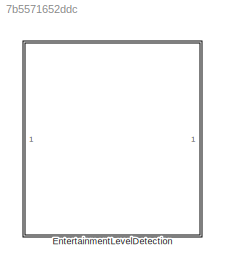
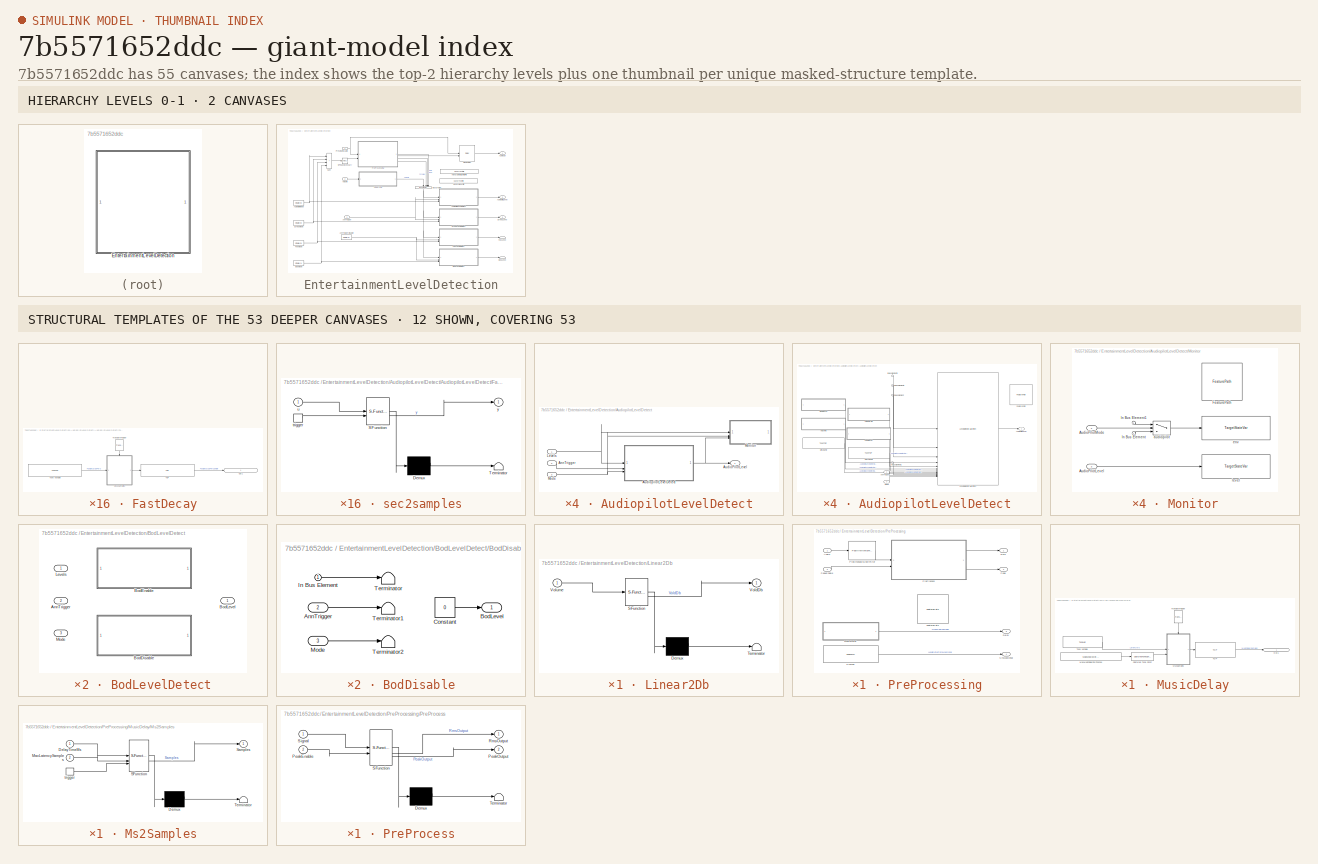
[diagram: thumbnail index - top-2 hierarchy levels (2 canvases) + 12 structural-template representatives of the remaining 53 canvases]
MODEL slx_7b5571652ddc
KIND library
CONFIG AbsTol = auto
CONFIG EnableMultiTasking = off
CONFIG FixedStep = auto
CONFIG InitFcn = EntertainmentLevelDetector_init;
CONFIG MaxStep = auto
CONFIG MinStep = auto
CONFIG PreLoadFcn = if (~exist('AUDIOPILOT_NUM_MUSIC_IN','var'))\n  AUDIOPILOT_NUM_MUSIC_IN=6;\nend\n
CONFIG RelTol = 1e-3
CONFIG SampleTimeConstraint = Unconstrained
CONFIG SolverName = VariableStepAuto
CONFIG StartTime = 0.0
CONFIG StopTime = 10.0
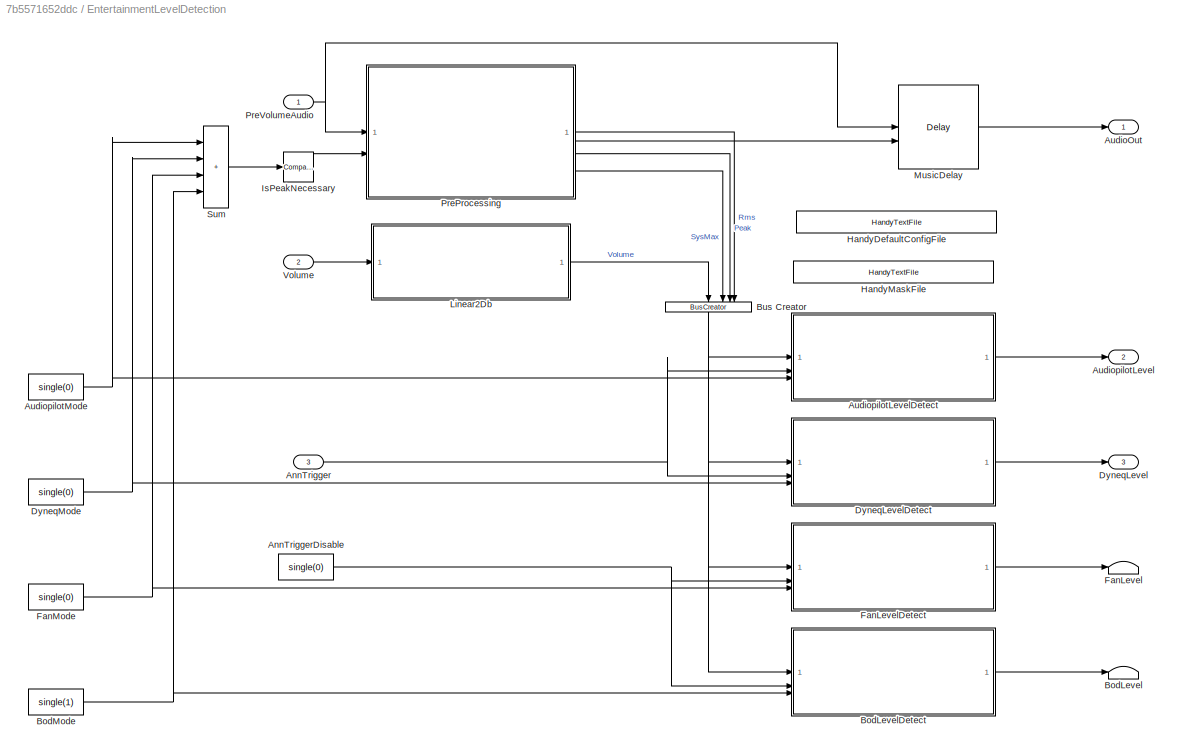
BLOCK [SubSystem] EntertainmentLevelDetection
BLOCK [Inport] EntertainmentLevelDetection/AnnTrigger
  Port = 3
BLOCK [Constant] EntertainmentLevelDetection/AnnTriggerDisable
  Value = single(0)
BLOCK [Outport] EntertainmentLevelDetection/AudioOut
  VectorParamsAs1DForOutWhenUnconnected = off
BLOCK [Outport] EntertainmentLevelDetection/AudiopilotLevel
  Port = 2
  VectorParamsAs1DForOutWhenUnconnected = off
BLOCK [SubSystem] EntertainmentLevelDetection/AudiopilotLevelDetect
BLOCK [Inport] EntertainmentLevelDetection/AudiopilotLevelDetect/AnnTrigger
  Port = 2
BLOCK [Outport] EntertainmentLevelDetection/AudiopilotLevelDetect/AudioPilotLevel
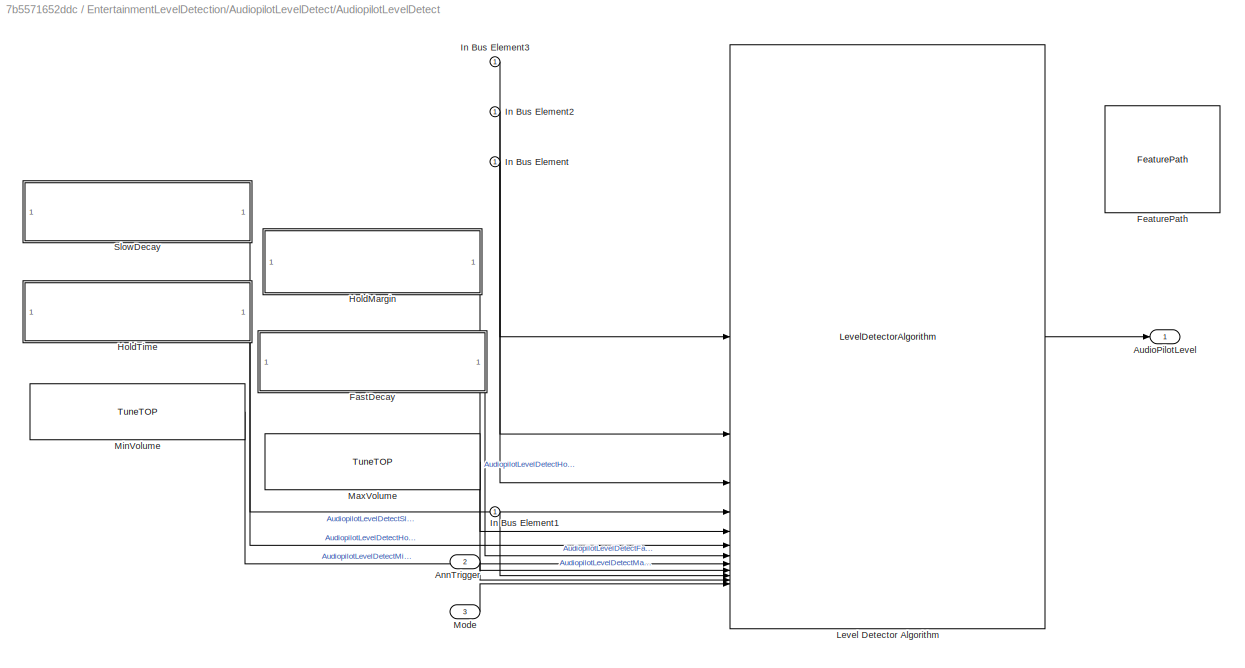
BLOCK [SubSystem] EntertainmentLevelDetection/AudiopilotLevelDetect/AudiopilotLevelDetect
BLOCK [Inport] EntertainmentLevelDetection/AudiopilotLevelDetect/AudiopilotLevelDetect/AnnTrigger
  Port = 2
BLOCK [Outport] EntertainmentLevelDetection/AudiopilotLevelDetect/AudiopilotLevelDetect/AudioPilotLevel
  VectorParamsAs1DForOutWhenUnconnected = off
BLOCK [SubSystem] EntertainmentLevelDetection/AudiopilotLevelDetect/AudiopilotLevelDetect/FastDecay
BLOCK [Outport] EntertainmentLevelDetection/AudiopilotLevelDetect/AudiopilotLevelDetect/FastDecay/Out1
  IconDisplay = Signal name
  VectorParamsAs1DForOutWhenUnconnected = off
BLOCK [Reference] EntertainmentLevelDetection/AudiopilotLevelDetect/AudiopilotLevelDetect/FastDecay/TOP  REF=TOP/TOP
  SourceBlock = TOP/TOP
  SourceProductName = Bose Talaria
  SourceType = Talaria Target Overlay Parameter
BLOCK [Reference] EntertainmentLevelDetection/AudiopilotLevelDetect/AudiopilotLevelDetect/FastDecay/TranslateTrigger  REF=TuneVar/TranslateTrigger
  NameLocation = left
  SourceBlock = TuneVar/TranslateTrigger
  SourceProductName = Bose Talaria
  SourceType = Talaria Translate Trigger
BLOCK [Reference] EntertainmentLevelDetection/AudiopilotLevelDetect/AudiopilotLevelDetect/FastDecay/Tune Variable  REF=TuneVar/TuneVar
  SourceBlock = TuneVar/TuneVar
  SourceProductName = Bose Talaria
  SourceType = Talaria Tune Variable
BLOCK [SubSystem] EntertainmentLevelDetection/AudiopilotLevelDetect/AudiopilotLevelDetect/FastDecay/sec2samples
  ErrorFcn = Stateflow.Translate.translate
  PermitHierarchicalResolution = ExplicitOnly
  SFBlockType = MATLAB Function
  TreatAsAtomicUnit = on
BLOCK [Demux] EntertainmentLevelDetection/AudiopilotLevelDetect/AudiopilotLevelDetect/FastDecay/sec2samples/ Demux 
  Outputs = 1
BLOCK [S-Function] EntertainmentLevelDetection/AudiopilotLevelDetect/AudiopilotLevelDetect/FastDecay/sec2samples/ SFunction 
  EnableBusSupport = off
  FunctionName = sf_sfun
  Parameters = FrameRate
  PortCounts = [2 2]
  SFcnIsStateOwnerBlock = off
  SFunctionDeploymentMode = off
  Tag = Stateflow S-Function 1
BLOCK [Terminator] EntertainmentLevelDetection/AudiopilotLevelDetect/AudiopilotLevelDetect/FastDecay/sec2samples/ Terminator 
BLOCK [TriggerPort] EntertainmentLevelDetection/AudiopilotLevelDetect/AudiopilotLevelDetect/FastDecay/sec2samples/trigger
  ShowOutputPort = on
  StatesWhenEnabling = held
  TriggerType = function-call
  VariantControl = Variant
BLOCK [Inport] EntertainmentLevelDetection/AudiopilotLevelDetect/AudiopilotLevelDetect/FastDecay/sec2samples/u
BLOCK [Outport] EntertainmentLevelDetection/AudiopilotLevelDetect/AudiopilotLevelDetect/FastDecay/sec2samples/y
  VectorParamsAs1DForOutWhenUnconnected = off
BLOCK [Reference] EntertainmentLevelDetection/AudiopilotLevelDetect/AudiopilotLevelDetect/FeaturePath  REF=FeaturePath/FeaturePath
  SourceBlock = FeaturePath/FeaturePath
  SourceProductName = Bose Talaria
  SourceType = Talaria Feature Path
BLOCK [SubSystem] EntertainmentLevelDetection/AudiopilotLevelDetect/AudiopilotLevelDetect/HoldMargin
BLOCK [Outport] EntertainmentLevelDetection/AudiopilotLevelDetect/AudiopilotLevelDetect/HoldMargin/Out1
  IconDisplay = Signal name
  VectorParamsAs1DForOutWhenUnconnected = off
BLOCK [SubSystem] EntertainmentLevelDetection/AudiopilotLevelDetect/AudiopilotLevelDetect/HoldMargin/SetPositive
  ErrorFcn = Stateflow.Translate.translate
  PermitHierarchicalResolution = ExplicitOnly
  SFBlockType = MATLAB Function
  TreatAsAtomicUnit = on
BLOCK [Demux] EntertainmentLevelDetection/AudiopilotLevelDetect/AudiopilotLevelDetect/HoldMargin/SetPositive/ Demux 
  Outputs = 1
BLOCK [S-Function] EntertainmentLevelDetection/AudiopilotLevelDetect/AudiopilotLevelDetect/HoldMargin/SetPositive/ SFunction 
  EnableBusSupport = off
  FunctionName = sf_sfun
  PortCounts = [2 2]
  SFcnIsStateOwnerBlock = off
  SFunctionDeploymentMode = off
  Tag = Stateflow S-Function 11
BLOCK [Terminator] EntertainmentLevelDetection/AudiopilotLevelDetect/AudiopilotLevelDetect/HoldMargin/SetPositive/ Terminator 
BLOCK [Outport] EntertainmentLevelDetection/AudiopilotLevelDetect/AudiopilotLevelDetect/HoldMargin/SetPositive/TOP
  VectorParamsAs1DForOutWhenUnconnected = off
BLOCK [Inport] EntertainmentLevelDetection/AudiopilotLevelDetect/AudiopilotLevelDetect/HoldMargin/SetPositive/Tune
BLOCK [TriggerPort] EntertainmentLevelDetection/AudiopilotLevelDetect/AudiopilotLevelDetect/HoldMargin/SetPositive/trigger
  ShowOutputPort = on
  StatesWhenEnabling = held
  TriggerType = function-call
  VariantControl = Variant
BLOCK [Reference] EntertainmentLevelDetection/AudiopilotLevelDetect/AudiopilotLevelDetect/HoldMargin/TOP  REF=TOP/TOP
  SourceBlock = TOP/TOP
  SourceProductName = Bose Talaria
  SourceType = Talaria Target Overlay Parameter
BLOCK [Reference] EntertainmentLevelDetection/AudiopilotLevelDetect/AudiopilotLevelDetect/HoldMargin/TranslateTrigger  REF=TuneVar/TranslateTrigger
  NameLocation = left
  SourceBlock = TuneVar/TranslateTrigger
  SourceProductName = Bose Talaria
  SourceType = Talaria Translate Trigger
BLOCK [Reference] EntertainmentLevelDetection/AudiopilotLevelDetect/AudiopilotLevelDetect/HoldMargin/Tune Variable  REF=TuneVar/TuneVar
  SourceBlock = TuneVar/TuneVar
  SourceProductName = Bose Talaria
  SourceType = Talaria Tune Variable
BLOCK [SubSystem] EntertainmentLevelDetection/AudiopilotLevelDetect/AudiopilotLevelDetect/HoldTime
BLOCK [Outport] EntertainmentLevelDetection/AudiopilotLevelDetect/AudiopilotLevelDetect/HoldTime/Out1
  IconDisplay = Signal name
  VectorParamsAs1DForOutWhenUnconnected = off
BLOCK [Reference] EntertainmentLevelDetection/AudiopilotLevelDetect/AudiopilotLevelDetect/HoldTime/TOP  REF=TOP/TOP
  SourceBlock = TOP/TOP
  SourceProductName = Bose Talaria
  SourceType = Talaria Target Overlay Parameter
BLOCK [Reference] EntertainmentLevelDetection/AudiopilotLevelDetect/AudiopilotLevelDetect/HoldTime/TranslateTrigger  REF=TuneVar/TranslateTrigger
  NameLocation = left
  SourceBlock = TuneVar/TranslateTrigger
  SourceProductName = Bose Talaria
  SourceType = Talaria Translate Trigger
BLOCK [Reference] EntertainmentLevelDetection/AudiopilotLevelDetect/AudiopilotLevelDetect/HoldTime/Tune Variable  REF=TuneVar/TuneVar
  SourceBlock = TuneVar/TuneVar
  SourceProductName = Bose Talaria
  SourceType = Talaria Tune Variable
BLOCK [SubSystem] EntertainmentLevelDetection/AudiopilotLevelDetect/AudiopilotLevelDetect/HoldTime/sec2samples
  ErrorFcn = Stateflow.Translate.translate
  PermitHierarchicalResolution = ExplicitOnly
  SFBlockType = MATLAB Function
  TreatAsAtomicUnit = on
BLOCK [Demux] EntertainmentLevelDetection/AudiopilotLevelDetect/AudiopilotLevelDetect/HoldTime/sec2samples/ Demux 
  Outputs = 1
BLOCK [S-Function] EntertainmentLevelDetection/AudiopilotLevelDetect/AudiopilotLevelDetect/HoldTime/sec2samples/ SFunction 
  EnableBusSupport = off
  FunctionName = sf_sfun
  Parameters = FrameRate
  PortCounts = [2 2]
  SFcnIsStateOwnerBlock = off
  SFunctionDeploymentMode = off
  Tag = Stateflow S-Function 2
BLOCK [Terminator] EntertainmentLevelDetection/AudiopilotLevelDetect/AudiopilotLevelDetect/HoldTime/sec2samples/ Terminator 
BLOCK [TriggerPort] EntertainmentLevelDetection/AudiopilotLevelDetect/AudiopilotLevelDetect/HoldTime/sec2samples/trigger
  ShowOutputPort = on
  StatesWhenEnabling = held
  TriggerType = function-call
  VariantControl = Variant
BLOCK [Inport] EntertainmentLevelDetection/AudiopilotLevelDetect/AudiopilotLevelDetect/HoldTime/sec2samples/u
BLOCK [Outport] EntertainmentLevelDetection/AudiopilotLevelDetect/AudiopilotLevelDetect/HoldTime/sec2samples/y
  VectorParamsAs1DForOutWhenUnconnected = off
BLOCK [Inport] EntertainmentLevelDetection/AudiopilotLevelDetect/AudiopilotLevelDetect/In Bus Element
BLOCK [Inport] EntertainmentLevelDetection/AudiopilotLevelDetect/AudiopilotLevelDetect/In Bus Element1
BLOCK [Inport] EntertainmentLevelDetection/AudiopilotLevelDetect/AudiopilotLevelDetect/In Bus Element2
BLOCK [Inport] EntertainmentLevelDetection/AudiopilotLevelDetect/AudiopilotLevelDetect/In Bus Element3
BLOCK [Reference] EntertainmentLevelDetection/AudiopilotLevelDetect/AudiopilotLevelDetect/Level Detector Algorithm  REF=LevelDetectorLib/LevelDetectorAlgorithm
  SourceBlock = LevelDetectorLib/LevelDetectorAlgorithm
  SourceType = Bose Level Detector Algorithm
BLOCK [Reference] EntertainmentLevelDetection/AudiopilotLevelDetect/AudiopilotLevelDetect/MaxVolume  REF=TuneVar/TuneTOP
  SourceBlock = TuneVar/TuneTOP
  SourceProductName = Bose Talaria
  SourceType = Talaria Trivial Tune TOP
BLOCK [Reference] EntertainmentLevelDetection/AudiopilotLevelDetect/AudiopilotLevelDetect/MinVolume  REF=TuneVar/TuneTOP
  SourceBlock = TuneVar/TuneTOP
  SourceProductName = Bose Talaria
  SourceType = Talaria Trivial Tune TOP
BLOCK [Inport] EntertainmentLevelDetection/AudiopilotLevelDetect/AudiopilotLevelDetect/Mode
  Port = 3
BLOCK [SubSystem] EntertainmentLevelDetection/AudiopilotLevelDetect/AudiopilotLevelDetect/SlowDecay
BLOCK [Outport] EntertainmentLevelDetection/AudiopilotLevelDetect/AudiopilotLevelDetect/SlowDecay/SlowDecayDbPerSample
  IconDisplay = Signal name
  VectorParamsAs1DForOutWhenUnconnected = off
BLOCK [Reference] EntertainmentLevelDetection/AudiopilotLevelDetect/AudiopilotLevelDetect/SlowDecay/TOP  REF=TOP/TOP
  SourceBlock = TOP/TOP
  SourceProductName = Bose Talaria
  SourceType = Talaria Target Overlay Parameter
BLOCK [Reference] EntertainmentLevelDetection/AudiopilotLevelDetect/AudiopilotLevelDetect/SlowDecay/TranslateTrigger  REF=TuneVar/TranslateTrigger
  NameLocation = left
  SourceBlock = TuneVar/TranslateTrigger
  SourceProductName = Bose Talaria
  SourceType = Talaria Translate Trigger
BLOCK [Reference] EntertainmentLevelDetection/AudiopilotLevelDetect/AudiopilotLevelDetect/SlowDecay/Tune Variable  REF=TuneVar/TuneVar
  SourceBlock = TuneVar/TuneVar
  SourceProductName = Bose Talaria
  SourceType = Talaria Tune Variable
BLOCK [SubSystem] EntertainmentLevelDetection/AudiopilotLevelDetect/AudiopilotLevelDetect/SlowDecay/sec2samples
  ErrorFcn = Stateflow.Translate.translate
  PermitHierarchicalResolution = ExplicitOnly
  SFBlockType = MATLAB Function
  TreatAsAtomicUnit = on
BLOCK [Demux] EntertainmentLevelDetection/AudiopilotLevelDetect/AudiopilotLevelDetect/SlowDecay/sec2samples/ Demux 
  Outputs = 1
BLOCK [S-Function] EntertainmentLevelDetection/AudiopilotLevelDetect/AudiopilotLevelDetect/SlowDecay/sec2samples/ SFunction 
  EnableBusSupport = off
  FunctionName = sf_sfun
  Parameters = FrameRate
  PortCounts = [2 2]
  SFcnIsStateOwnerBlock = off
  SFunctionDeploymentMode = off
  Tag = Stateflow S-Function 8
BLOCK [Terminator] EntertainmentLevelDetection/AudiopilotLevelDetect/AudiopilotLevelDetect/SlowDecay/sec2samples/ Terminator 
BLOCK [TriggerPort] EntertainmentLevelDetection/AudiopilotLevelDetect/AudiopilotLevelDetect/SlowDecay/sec2samples/trigger
  ShowOutputPort = on
  StatesWhenEnabling = held
  TriggerType = function-call
  VariantControl = Variant
BLOCK [Inport] EntertainmentLevelDetection/AudiopilotLevelDetect/AudiopilotLevelDetect/SlowDecay/sec2samples/u
BLOCK [Outport] EntertainmentLevelDetection/AudiopilotLevelDetect/AudiopilotLevelDetect/SlowDecay/sec2samples/y
  VectorParamsAs1DForOutWhenUnconnected = off
BLOCK [Inport] EntertainmentLevelDetection/AudiopilotLevelDetect/Levels
BLOCK [Inport] EntertainmentLevelDetection/AudiopilotLevelDetect/Mode
  Port = 3
BLOCK [SubSystem] EntertainmentLevelDetection/AudiopilotLevelDetect/Monitor
BLOCK [Inport] EntertainmentLevelDetection/AudiopilotLevelDetect/Monitor/AudioPilotLevel
  Port = 3
BLOCK [Inport] EntertainmentLevelDetection/AudiopilotLevelDetect/Monitor/AudioPilotMode
  Port = 2
BLOCK [Reference] EntertainmentLevelDetection/AudiopilotLevelDetect/Monitor/FeaturePath  REF=FeaturePath/FeaturePath
  SourceBlock = FeaturePath/FeaturePath
  SourceProductName = Bose Talaria
  SourceType = Talaria Feature Path
BLOCK [Inport] EntertainmentLevelDetection/AudiopilotLevelDetect/Monitor/In Bus Element
BLOCK [Inport] EntertainmentLevelDetection/AudiopilotLevelDetect/Monitor/In Bus Element1
BLOCK [Switch] EntertainmentLevelDetection/AudiopilotLevelDetect/Monitor/audiopilot
  Criteria = u2 ~= 0
  InputSameDT = off
  SaturateOnIntegerOverflow = off
BLOCK [Reference] EntertainmentLevelDetection/AudiopilotLevelDetect/Monitor/env  REF=StateVar/TargetStateVar
  SourceBlock = StateVar/TargetStateVar
  SourceProductName = Bose Talaria
  SourceType = Talaria Target State Variable
BLOCK [Reference] EntertainmentLevelDetection/AudiopilotLevelDetect/Monitor/level  REF=StateVar/TargetStateVar
  SourceBlock = StateVar/TargetStateVar
  SourceProductName = Bose Talaria
  SourceType = Talaria Target State Variable
BLOCK [Constant] EntertainmentLevelDetection/AudiopilotMode
  Value = single(0)
BLOCK [Terminator] EntertainmentLevelDetection/BodLevel
BLOCK [SubSystem] EntertainmentLevelDetection/BodLevelDetect
  LabelModeActiveChoice = BodDisable
  Variant = on
  VariantControlMode = label
BLOCK [Inport] EntertainmentLevelDetection/BodLevelDetect/AnnTrigger
  Port = 2
BLOCK [SubSystem] EntertainmentLevelDetection/BodLevelDetect/BodDisable
  VariantControl = BodDisable
BLOCK [Inport] EntertainmentLevelDetection/BodLevelDetect/BodDisable/AnnTrigger
  Port = 2
BLOCK [Outport] EntertainmentLevelDetection/BodLevelDetect/BodDisable/BodLevel
  VectorParamsAs1DForOutWhenUnconnected = off
BLOCK [Constant] EntertainmentLevelDetection/BodLevelDetect/BodDisable/Constant
  OutDataTypeStr = single
  Value = 0
BLOCK [Inport] EntertainmentLevelDetection/BodLevelDetect/BodDisable/In Bus Element
  NameLocation = top
BLOCK [Inport] EntertainmentLevelDetection/BodLevelDetect/BodDisable/Mode
  Port = 3
BLOCK [Terminator] EntertainmentLevelDetection/BodLevelDetect/BodDisable/Terminator
BLOCK [Terminator] EntertainmentLevelDetection/BodLevelDetect/BodDisable/Terminator1
BLOCK [Terminator] EntertainmentLevelDetection/BodLevelDetect/BodDisable/Terminator2
BLOCK [SubSystem] EntertainmentLevelDetection/BodLevelDetect/BodEnable
  VariantControl = BodEnable
BLOCK [Inport] EntertainmentLevelDetection/BodLevelDetect/BodEnable/AnnTrigger
  Port = 2
BLOCK [Outport] EntertainmentLevelDetection/BodLevelDetect/BodEnable/BodLevel
BLOCK [SubSystem] EntertainmentLevelDetection/BodLevelDetect/BodEnable/BodLevelDetect
  VariantControl = BOD_enable
BLOCK [Inport] EntertainmentLevelDetection/BodLevelDetect/BodEnable/BodLevelDetect/AnnTrigger
  Port = 2
BLOCK [Outport] EntertainmentLevelDetection/BodLevelDetect/BodEnable/BodLevelDetect/BodLevel
BLOCK [SubSystem] EntertainmentLevelDetection/BodLevelDetect/BodEnable/BodLevelDetect/FastDecay
BLOCK [Outport] EntertainmentLevelDetection/BodLevelDetect/BodEnable/BodLevelDetect/FastDecay/Out1
  IconDisplay = Signal name
  VectorParamsAs1DForOutWhenUnconnected = off
BLOCK [Reference] EntertainmentLevelDetection/BodLevelDetect/BodEnable/BodLevelDetect/FastDecay/TOP  REF=TOP/TOP
  SourceBlock = TOP/TOP
  SourceProductName = Bose Talaria
  SourceType = Talaria Target Overlay Parameter
BLOCK [Reference] EntertainmentLevelDetection/BodLevelDetect/BodEnable/BodLevelDetect/FastDecay/TranslateTrigger  REF=TuneVar/TranslateTrigger
  NameLocation = left
  SourceBlock = TuneVar/TranslateTrigger
  SourceProductName = Bose Talaria
  SourceType = Talaria Translate Trigger
BLOCK [Reference] EntertainmentLevelDetection/BodLevelDetect/BodEnable/BodLevelDetect/FastDecay/Tune Variable  REF=TuneVar/TuneVar
  SourceBlock = TuneVar/TuneVar
  SourceProductName = Bose Talaria
  SourceType = Talaria Tune Variable
BLOCK [SubSystem] EntertainmentLevelDetection/BodLevelDetect/BodEnable/BodLevelDetect/FastDecay/sec2samples
  ErrorFcn = Stateflow.Translate.translate
  PermitHierarchicalResolution = ExplicitOnly
  SFBlockType = MATLAB Function
  TreatAsAtomicUnit = on
BLOCK [Demux] EntertainmentLevelDetection/BodLevelDetect/BodEnable/BodLevelDetect/FastDecay/sec2samples/ Demux 
  Outputs = 1
BLOCK [S-Function] EntertainmentLevelDetection/BodLevelDetect/BodEnable/BodLevelDetect/FastDecay/sec2samples/ SFunction 
  EnableBusSupport = off
  FunctionName = sf_sfun
  Parameters = FrameRate
  PortCounts = [2 2]
  SFcnIsStateOwnerBlock = off
  SFunctionDeploymentMode = off
  Tag = Stateflow S-Function 19
BLOCK [Terminator] EntertainmentLevelDetection/BodLevelDetect/BodEnable/BodLevelDetect/FastDecay/sec2samples/ Terminator 
BLOCK [TriggerPort] EntertainmentLevelDetection/BodLevelDetect/BodEnable/BodLevelDetect/FastDecay/sec2samples/trigger
  ShowOutputPort = on
  StatesWhenEnabling = held
  TriggerType = function-call
  VariantControl = Variant
BLOCK [Inport] EntertainmentLevelDetection/BodLevelDetect/BodEnable/BodLevelDetect/FastDecay/sec2samples/u
BLOCK [Outport] EntertainmentLevelDetection/BodLevelDetect/BodEnable/BodLevelDetect/FastDecay/sec2samples/y
  VectorParamsAs1DForOutWhenUnconnected = off
BLOCK [Reference] EntertainmentLevelDetection/BodLevelDetect/BodEnable/BodLevelDetect/FeaturePath  REF=FeaturePath/FeaturePath
  SourceBlock = FeaturePath/FeaturePath
  SourceProductName = Bose Talaria
  SourceType = Talaria Feature Path
BLOCK [SubSystem] EntertainmentLevelDetection/BodLevelDetect/BodEnable/BodLevelDetect/HoldMargin
BLOCK [Outport] EntertainmentLevelDetection/BodLevelDetect/BodEnable/BodLevelDetect/HoldMargin/Out1
  IconDisplay = Signal name
  VectorParamsAs1DForOutWhenUnconnected = off
BLOCK [SubSystem] EntertainmentLevelDetection/BodLevelDetect/BodEnable/BodLevelDetect/HoldMargin/SetPositive
  ErrorFcn = Stateflow.Translate.translate
  PermitHierarchicalResolution = ExplicitOnly
  SFBlockType = MATLAB Function
  TreatAsAtomicUnit = on
BLOCK [Demux] EntertainmentLevelDetection/BodLevelDetect/BodEnable/BodLevelDetect/HoldMargin/SetPositive/ Demux 
  Outputs = 1
BLOCK [S-Function] EntertainmentLevelDetection/BodLevelDetect/BodEnable/BodLevelDetect/HoldMargin/SetPositive/ SFunction 
  EnableBusSupport = off
  FunctionName = sf_sfun
  PortCounts = [2 2]
  SFcnIsStateOwnerBlock = off
  SFunctionDeploymentMode = off
  Tag = Stateflow S-Function 20
BLOCK [Terminator] EntertainmentLevelDetection/BodLevelDetect/BodEnable/BodLevelDetect/HoldMargin/SetPositive/ Terminator 
BLOCK [Outport] EntertainmentLevelDetection/BodLevelDetect/BodEnable/BodLevelDetect/HoldMargin/SetPositive/TOP
  VectorParamsAs1DForOutWhenUnconnected = off
BLOCK [Inport] EntertainmentLevelDetection/BodLevelDetect/BodEnable/BodLevelDetect/HoldMargin/SetPositive/Tune
BLOCK [TriggerPort] EntertainmentLevelDetection/BodLevelDetect/BodEnable/BodLevelDetect/HoldMargin/SetPositive/trigger
  ShowOutputPort = on
  StatesWhenEnabling = held
  TriggerType = function-call
  VariantControl = Variant
BLOCK [Reference] EntertainmentLevelDetection/BodLevelDetect/BodEnable/BodLevelDetect/HoldMargin/TOP  REF=TOP/TOP
  SourceBlock = TOP/TOP
  SourceProductName = Bose Talaria
  SourceType = Talaria Target Overlay Parameter
BLOCK [Reference] EntertainmentLevelDetection/BodLevelDetect/BodEnable/BodLevelDetect/HoldMargin/TranslateTrigger  REF=TuneVar/TranslateTrigger
  NameLocation = left
  SourceBlock = TuneVar/TranslateTrigger
  SourceProductName = Bose Talaria
  SourceType = Talaria Translate Trigger
BLOCK [Reference] EntertainmentLevelDetection/BodLevelDetect/BodEnable/BodLevelDetect/HoldMargin/Tune Variable  REF=TuneVar/TuneVar
  SourceBlock = TuneVar/TuneVar
  SourceProductName = Bose Talaria
  SourceType = Talaria Tune Variable
BLOCK [SubSystem] EntertainmentLevelDetection/BodLevelDetect/BodEnable/BodLevelDetect/HoldTime
BLOCK [Outport] EntertainmentLevelDetection/BodLevelDetect/BodEnable/BodLevelDetect/HoldTime/Out1
  IconDisplay = Signal name
  VectorParamsAs1DForOutWhenUnconnected = off
BLOCK [Reference] EntertainmentLevelDetection/BodLevelDetect/BodEnable/BodLevelDetect/HoldTime/TOP  REF=TOP/TOP
  SourceBlock = TOP/TOP
  SourceProductName = Bose Talaria
  SourceType = Talaria Target Overlay Parameter
BLOCK [Reference] EntertainmentLevelDetection/BodLevelDetect/BodEnable/BodLevelDetect/HoldTime/TranslateTrigger  REF=TuneVar/TranslateTrigger
  NameLocation = left
  SourceBlock = TuneVar/TranslateTrigger
  SourceProductName = Bose Talaria
  SourceType = Talaria Translate Trigger
BLOCK [Reference] EntertainmentLevelDetection/BodLevelDetect/BodEnable/BodLevelDetect/HoldTime/Tune Variable  REF=TuneVar/TuneVar
  SourceBlock = TuneVar/TuneVar
  SourceProductName = Bose Talaria
  SourceType = Talaria Tune Variable
BLOCK [SubSystem] EntertainmentLevelDetection/BodLevelDetect/BodEnable/BodLevelDetect/HoldTime/sec2samples
  ErrorFcn = Stateflow.Translate.translate
  PermitHierarchicalResolution = ExplicitOnly
  SFBlockType = MATLAB Function
  TreatAsAtomicUnit = on
BLOCK [Demux] EntertainmentLevelDetection/BodLevelDetect/BodEnable/BodLevelDetect/HoldTime/sec2samples/ Demux 
  Outputs = 1
BLOCK [S-Function] EntertainmentLevelDetection/BodLevelDetect/BodEnable/BodLevelDetect/HoldTime/sec2samples/ SFunction 
  EnableBusSupport = off
  FunctionName = sf_sfun
  Parameters = FrameRate
  PortCounts = [2 2]
  SFcnIsStateOwnerBlock = off
  SFunctionDeploymentMode = off
  Tag = Stateflow S-Function 21
BLOCK [Terminator] EntertainmentLevelDetection/BodLevelDetect/BodEnable/BodLevelDetect/HoldTime/sec2samples/ Terminator 
BLOCK [TriggerPort] EntertainmentLevelDetection/BodLevelDetect/BodEnable/BodLevelDetect/HoldTime/sec2samples/trigger
  ShowOutputPort = on
  StatesWhenEnabling = held
  TriggerType = function-call
  VariantControl = Variant
BLOCK [Inport] EntertainmentLevelDetection/BodLevelDetect/BodEnable/BodLevelDetect/HoldTime/sec2samples/u
BLOCK [Outport] EntertainmentLevelDetection/BodLevelDetect/BodEnable/BodLevelDetect/HoldTime/sec2samples/y
  VectorParamsAs1DForOutWhenUnconnected = off
BLOCK [Inport] EntertainmentLevelDetection/BodLevelDetect/BodEnable/BodLevelDetect/In Bus Element
BLOCK [Inport] EntertainmentLevelDetection/BodLevelDetect/BodEnable/BodLevelDetect/In Bus Element1
BLOCK [Inport] EntertainmentLevelDetection/BodLevelDetect/BodEnable/BodLevelDetect/In Bus Element2
BLOCK [Inport] EntertainmentLevelDetection/BodLevelDetect/BodEnable/BodLevelDetect/In Bus Element3
BLOCK [Reference] EntertainmentLevelDetection/BodLevelDetect/BodEnable/BodLevelDetect/Level Detector Algorithm  REF=LevelDetectorLib/LevelDetectorAlgorithm
  SourceBlock = LevelDetectorLib/LevelDetectorAlgorithm
  SourceType = Bose Level Detector Algorithm
BLOCK [Reference] EntertainmentLevelDetection/BodLevelDetect/BodEnable/BodLevelDetect/MaxVolume  REF=TuneVar/TuneTOP
  SourceBlock = TuneVar/TuneTOP
  SourceProductName = Bose Talaria
  SourceType = Talaria Trivial Tune TOP
BLOCK [Reference] EntertainmentLevelDetection/BodLevelDetect/BodEnable/BodLevelDetect/MinVolume  REF=TuneVar/TuneTOP
  SourceBlock = TuneVar/TuneTOP
  SourceProductName = Bose Talaria
  SourceType = Talaria Trivial Tune TOP
BLOCK [Inport] EntertainmentLevelDetection/BodLevelDetect/BodEnable/BodLevelDetect/Mode
  Port = 3
BLOCK [SubSystem] EntertainmentLevelDetection/BodLevelDetect/BodEnable/BodLevelDetect/SlowDecay
BLOCK [Outport] EntertainmentLevelDetection/BodLevelDetect/BodEnable/BodLevelDetect/SlowDecay/SlowDecayDbPerSample
  IconDisplay = Signal name
  VectorParamsAs1DForOutWhenUnconnected = off
BLOCK [Reference] EntertainmentLevelDetection/BodLevelDetect/BodEnable/BodLevelDetect/SlowDecay/TOP  REF=TOP/TOP
  SourceBlock = TOP/TOP
  SourceProductName = Bose Talaria
  SourceType = Talaria Target Overlay Parameter
BLOCK [Reference] EntertainmentLevelDetection/BodLevelDetect/BodEnable/BodLevelDetect/SlowDecay/TranslateTrigger  REF=TuneVar/TranslateTrigger
  NameLocation = left
  SourceBlock = TuneVar/TranslateTrigger
  SourceProductName = Bose Talaria
  SourceType = Talaria Translate Trigger
BLOCK [Reference] EntertainmentLevelDetection/BodLevelDetect/BodEnable/BodLevelDetect/SlowDecay/Tune Variable  REF=TuneVar/TuneVar
  SourceBlock = TuneVar/TuneVar
  SourceProductName = Bose Talaria
  SourceType = Talaria Tune Variable
BLOCK [SubSystem] EntertainmentLevelDetection/BodLevelDetect/BodEnable/BodLevelDetect/SlowDecay/sec2samples
  ErrorFcn = Stateflow.Translate.translate
  PermitHierarchicalResolution = ExplicitOnly
  SFBlockType = MATLAB Function
  TreatAsAtomicUnit = on
BLOCK [Demux] EntertainmentLevelDetection/BodLevelDetect/BodEnable/BodLevelDetect/SlowDecay/sec2samples/ Demux 
  Outputs = 1
BLOCK [S-Function] EntertainmentLevelDetection/BodLevelDetect/BodEnable/BodLevelDetect/SlowDecay/sec2samples/ SFunction 
  EnableBusSupport = off
  FunctionName = sf_sfun
  Parameters = FrameRate
  PortCounts = [2 2]
  SFcnIsStateOwnerBlock = off
  SFunctionDeploymentMode = off
  Tag = Stateflow S-Function 22
BLOCK [Terminator] EntertainmentLevelDetection/BodLevelDetect/BodEnable/BodLevelDetect/SlowDecay/sec2samples/ Terminator 
BLOCK [TriggerPort] EntertainmentLevelDetection/BodLevelDetect/BodEnable/BodLevelDetect/SlowDecay/sec2samples/trigger
  ShowOutputPort = on
  StatesWhenEnabling = held
  TriggerType = function-call
  VariantControl = Variant
BLOCK [Inport] EntertainmentLevelDetection/BodLevelDetect/BodEnable/BodLevelDetect/SlowDecay/sec2samples/u
BLOCK [Outport] EntertainmentLevelDetection/BodLevelDetect/BodEnable/BodLevelDetect/SlowDecay/sec2samples/y
  VectorParamsAs1DForOutWhenUnconnected = off
BLOCK [Inport] EntertainmentLevelDetection/BodLevelDetect/BodEnable/Levels
BLOCK [Inport] EntertainmentLevelDetection/BodLevelDetect/BodEnable/Mode
  Port = 3
BLOCK [SubSystem] EntertainmentLevelDetection/BodLevelDetect/BodEnable/Monitor
BLOCK [Inport] EntertainmentLevelDetection/BodLevelDetect/BodEnable/Monitor/BodLevel
  Port = 3
BLOCK [Inport] EntertainmentLevelDetection/BodLevelDetect/BodEnable/Monitor/BodMode
  Port = 2
BLOCK [Reference] EntertainmentLevelDetection/BodLevelDetect/BodEnable/Monitor/FeaturePath  REF=FeaturePath/FeaturePath
  SourceBlock = FeaturePath/FeaturePath
  SourceProductName = Bose Talaria
  SourceType = Talaria Feature Path
BLOCK [Inport] EntertainmentLevelDetection/BodLevelDetect/BodEnable/Monitor/In Bus Element
BLOCK [Inport] EntertainmentLevelDetection/BodLevelDetect/BodEnable/Monitor/In Bus Element1
BLOCK [Switch] EntertainmentLevelDetection/BodLevelDetect/BodEnable/Monitor/bod
  Criteria = u2 ~= 0
  InputSameDT = off
  SaturateOnIntegerOverflow = off
BLOCK [Reference] EntertainmentLevelDetection/BodLevelDetect/BodEnable/Monitor/env  REF=StateVar/TargetStateVar
  SourceBlock = StateVar/TargetStateVar
  SourceProductName = Bose Talaria
  SourceType = Talaria Target State Variable
BLOCK [Reference] EntertainmentLevelDetection/BodLevelDetect/BodEnable/Monitor/level  REF=StateVar/TargetStateVar
  SourceBlock = StateVar/TargetStateVar
  SourceProductName = Bose Talaria
  SourceType = Talaria Target State Variable
BLOCK [Outport] EntertainmentLevelDetection/BodLevelDetect/BodLevel
BLOCK [Inport] EntertainmentLevelDetection/BodLevelDetect/Levels
BLOCK [Inport] EntertainmentLevelDetection/BodLevelDetect/Mode
  Port = 3
BLOCK [Constant] EntertainmentLevelDetection/BodMode
  Value = single(1)
BLOCK [BusCreator] EntertainmentLevelDetection/Bus Creator
  DisplayOption = bar
  InheritFromInputs = on
  Inputs = Volume,SysMax,Peak,Rms
  NameLocation = left
BLOCK [Outport] EntertainmentLevelDetection/DyneqLevel
  Port = 3
  VectorParamsAs1DForOutWhenUnconnected = off
BLOCK [SubSystem] EntertainmentLevelDetection/DyneqLevelDetect
BLOCK [Inport] EntertainmentLevelDetection/DyneqLevelDetect/AnnTrigger
  Port = 2
BLOCK [Outport] EntertainmentLevelDetection/DyneqLevelDetect/DyneqLevel
BLOCK [SubSystem] EntertainmentLevelDetection/DyneqLevelDetect/DyneqLevelDetect
BLOCK [Inport] EntertainmentLevelDetection/DyneqLevelDetect/DyneqLevelDetect/AnnTrigger
  Port = 2
BLOCK [Outport] EntertainmentLevelDetection/DyneqLevelDetect/DyneqLevelDetect/DyneqLevel
  VectorParamsAs1DForOutWhenUnconnected = off
BLOCK [SubSystem] EntertainmentLevelDetection/DyneqLevelDetect/DyneqLevelDetect/FastDecay
BLOCK [Outport] EntertainmentLevelDetection/DyneqLevelDetect/DyneqLevelDetect/FastDecay/Out1
  IconDisplay = Signal name
  VectorParamsAs1DForOutWhenUnconnected = off
BLOCK [Reference] EntertainmentLevelDetection/DyneqLevelDetect/DyneqLevelDetect/FastDecay/TOP  REF=TOP/TOP
  SourceBlock = TOP/TOP
  SourceProductName = Bose Talaria
  SourceType = Talaria Target Overlay Parameter
BLOCK [Reference] EntertainmentLevelDetection/DyneqLevelDetect/DyneqLevelDetect/FastDecay/TranslateTrigger  REF=TuneVar/TranslateTrigger
  NameLocation = left
  SourceBlock = TuneVar/TranslateTrigger
  SourceProductName = Bose Talaria
  SourceType = Talaria Translate Trigger
BLOCK [Reference] EntertainmentLevelDetection/DyneqLevelDetect/DyneqLevelDetect/FastDecay/Tune Variable  REF=TuneVar/TuneVar
  SourceBlock = TuneVar/TuneVar
  SourceProductName = Bose Talaria
  SourceType = Talaria Tune Variable
BLOCK [SubSystem] EntertainmentLevelDetection/DyneqLevelDetect/DyneqLevelDetect/FastDecay/sec2samples
  ErrorFcn = Stateflow.Translate.translate
  PermitHierarchicalResolution = ExplicitOnly
  SFBlockType = MATLAB Function
  TreatAsAtomicUnit = on
BLOCK [Demux] EntertainmentLevelDetection/DyneqLevelDetect/DyneqLevelDetect/FastDecay/sec2samples/ Demux 
  Outputs = 1
BLOCK [S-Function] EntertainmentLevelDetection/DyneqLevelDetect/DyneqLevelDetect/FastDecay/sec2samples/ SFunction 
  EnableBusSupport = off
  FunctionName = sf_sfun
  Parameters = FrameRate
  PortCounts = [2 2]
  SFcnIsStateOwnerBlock = off
  SFunctionDeploymentMode = off
  Tag = Stateflow S-Function 5
BLOCK [Terminator] EntertainmentLevelDetection/DyneqLevelDetect/DyneqLevelDetect/FastDecay/sec2samples/ Terminator 
BLOCK [TriggerPort] EntertainmentLevelDetection/DyneqLevelDetect/DyneqLevelDetect/FastDecay/sec2samples/trigger
  ShowOutputPort = on
  StatesWhenEnabling = held
  TriggerType = function-call
  VariantControl = Variant
BLOCK [Inport] EntertainmentLevelDetection/DyneqLevelDetect/DyneqLevelDetect/FastDecay/sec2samples/u
BLOCK [Outport] EntertainmentLevelDetection/DyneqLevelDetect/DyneqLevelDetect/FastDecay/sec2samples/y
  VectorParamsAs1DForOutWhenUnconnected = off
BLOCK [Reference] EntertainmentLevelDetection/DyneqLevelDetect/DyneqLevelDetect/FeaturePath  REF=FeaturePath/FeaturePath
  SourceBlock = FeaturePath/FeaturePath
  SourceProductName = Bose Talaria
  SourceType = Talaria Feature Path
BLOCK [SubSystem] EntertainmentLevelDetection/DyneqLevelDetect/DyneqLevelDetect/HoldMargin
BLOCK [Outport] EntertainmentLevelDetection/DyneqLevelDetect/DyneqLevelDetect/HoldMargin/Out1
  IconDisplay = Signal name
  VectorParamsAs1DForOutWhenUnconnected = off
BLOCK [SubSystem] EntertainmentLevelDetection/DyneqLevelDetect/DyneqLevelDetect/HoldMargin/SetPositive
  ErrorFcn = Stateflow.Translate.translate
  PermitHierarchicalResolution = ExplicitOnly
  SFBlockType = MATLAB Function
  TreatAsAtomicUnit = on
BLOCK [Demux] EntertainmentLevelDetection/DyneqLevelDetect/DyneqLevelDetect/HoldMargin/SetPositive/ Demux 
  Outputs = 1
BLOCK [S-Function] EntertainmentLevelDetection/DyneqLevelDetect/DyneqLevelDetect/HoldMargin/SetPositive/ SFunction 
  EnableBusSupport = off
  FunctionName = sf_sfun
  PortCounts = [2 2]
  SFcnIsStateOwnerBlock = off
  SFunctionDeploymentMode = off
  Tag = Stateflow S-Function 18
BLOCK [Terminator] EntertainmentLevelDetection/DyneqLevelDetect/DyneqLevelDetect/HoldMargin/SetPositive/ Terminator 
BLOCK [Outport] EntertainmentLevelDetection/DyneqLevelDetect/DyneqLevelDetect/HoldMargin/SetPositive/TOP
  VectorParamsAs1DForOutWhenUnconnected = off
BLOCK [Inport] EntertainmentLevelDetection/DyneqLevelDetect/DyneqLevelDetect/HoldMargin/SetPositive/Tune
BLOCK [TriggerPort] EntertainmentLevelDetection/DyneqLevelDetect/DyneqLevelDetect/HoldMargin/SetPositive/trigger
  ShowOutputPort = on
  StatesWhenEnabling = held
  TriggerType = function-call
  VariantControl = Variant
BLOCK [Reference] EntertainmentLevelDetection/DyneqLevelDetect/DyneqLevelDetect/HoldMargin/TOP  REF=TOP/TOP
  SourceBlock = TOP/TOP
  SourceProductName = Bose Talaria
  SourceType = Talaria Target Overlay Parameter
BLOCK [Reference] EntertainmentLevelDetection/DyneqLevelDetect/DyneqLevelDetect/HoldMargin/TranslateTrigger  REF=TuneVar/TranslateTrigger
  NameLocation = left
  SourceBlock = TuneVar/TranslateTrigger
  SourceProductName = Bose Talaria
  SourceType = Talaria Translate Trigger
BLOCK [Reference] EntertainmentLevelDetection/DyneqLevelDetect/DyneqLevelDetect/HoldMargin/Tune Variable  REF=TuneVar/TuneVar
  SourceBlock = TuneVar/TuneVar
  SourceProductName = Bose Talaria
  SourceType = Talaria Tune Variable
BLOCK [SubSystem] EntertainmentLevelDetection/DyneqLevelDetect/DyneqLevelDetect/HoldTime
BLOCK [Outport] EntertainmentLevelDetection/DyneqLevelDetect/DyneqLevelDetect/HoldTime/Out1
  IconDisplay = Signal name
  VectorParamsAs1DForOutWhenUnconnected = off
BLOCK [Reference] EntertainmentLevelDetection/DyneqLevelDetect/DyneqLevelDetect/HoldTime/TOP  REF=TOP/TOP
  SourceBlock = TOP/TOP
  SourceProductName = Bose Talaria
  SourceType = Talaria Target Overlay Parameter
BLOCK [Reference] EntertainmentLevelDetection/DyneqLevelDetect/DyneqLevelDetect/HoldTime/TranslateTrigger  REF=TuneVar/TranslateTrigger
  NameLocation = left
  SourceBlock = TuneVar/TranslateTrigger
  SourceProductName = Bose Talaria
  SourceType = Talaria Translate Trigger
BLOCK [Reference] EntertainmentLevelDetection/DyneqLevelDetect/DyneqLevelDetect/HoldTime/Tune Variable  REF=TuneVar/TuneVar
  SourceBlock = TuneVar/TuneVar
  SourceProductName = Bose Talaria
  SourceType = Talaria Tune Variable
BLOCK [SubSystem] EntertainmentLevelDetection/DyneqLevelDetect/DyneqLevelDetect/HoldTime/sec2samples
  ErrorFcn = Stateflow.Translate.translate
  PermitHierarchicalResolution = ExplicitOnly
  SFBlockType = MATLAB Function
  TreatAsAtomicUnit = on
BLOCK [Demux] EntertainmentLevelDetection/DyneqLevelDetect/DyneqLevelDetect/HoldTime/sec2samples/ Demux 
  Outputs = 1
BLOCK [S-Function] EntertainmentLevelDetection/DyneqLevelDetect/DyneqLevelDetect/HoldTime/sec2samples/ SFunction 
  EnableBusSupport = off
  FunctionName = sf_sfun
  Parameters = FrameRate
  PortCounts = [2 2]
  SFcnIsStateOwnerBlock = off
  SFunctionDeploymentMode = off
  Tag = Stateflow S-Function 4
BLOCK [Terminator] EntertainmentLevelDetection/DyneqLevelDetect/DyneqLevelDetect/HoldTime/sec2samples/ Terminator 
BLOCK [TriggerPort] EntertainmentLevelDetection/DyneqLevelDetect/DyneqLevelDetect/HoldTime/sec2samples/trigger
  ShowOutputPort = on
  StatesWhenEnabling = held
  TriggerType = function-call
  VariantControl = Variant
BLOCK [Inport] EntertainmentLevelDetection/DyneqLevelDetect/DyneqLevelDetect/HoldTime/sec2samples/u
BLOCK [Outport] EntertainmentLevelDetection/DyneqLevelDetect/DyneqLevelDetect/HoldTime/sec2samples/y
  VectorParamsAs1DForOutWhenUnconnected = off
BLOCK [Inport] EntertainmentLevelDetection/DyneqLevelDetect/DyneqLevelDetect/In Bus Element
BLOCK [Inport] EntertainmentLevelDetection/DyneqLevelDetect/DyneqLevelDetect/In Bus Element1
BLOCK [Inport] EntertainmentLevelDetection/DyneqLevelDetect/DyneqLevelDetect/In Bus Element2
BLOCK [Inport] EntertainmentLevelDetection/DyneqLevelDetect/DyneqLevelDetect/In Bus Element3
BLOCK [Reference] EntertainmentLevelDetection/DyneqLevelDetect/DyneqLevelDetect/Level Detector Algorithm  REF=LevelDetectorLib/LevelDetectorAlgorithm
  SourceBlock = LevelDetectorLib/LevelDetectorAlgorithm
  SourceType = Bose Level Detector Algorithm
BLOCK [Reference] EntertainmentLevelDetection/DyneqLevelDetect/DyneqLevelDetect/MaxVolume  REF=TuneVar/TuneTOP
  SourceBlock = TuneVar/TuneTOP
  SourceProductName = Bose Talaria
  SourceType = Talaria Trivial Tune TOP
BLOCK [Reference] EntertainmentLevelDetection/DyneqLevelDetect/DyneqLevelDetect/MinVolume  REF=TuneVar/TuneTOP
  SourceBlock = TuneVar/TuneTOP
  SourceProductName = Bose Talaria
  SourceType = Talaria Trivial Tune TOP
BLOCK [Inport] EntertainmentLevelDetection/DyneqLevelDetect/DyneqLevelDetect/Mode
  Port = 3
BLOCK [SubSystem] EntertainmentLevelDetection/DyneqLevelDetect/DyneqLevelDetect/SlowDecay
BLOCK [Outport] EntertainmentLevelDetection/DyneqLevelDetect/DyneqLevelDetect/SlowDecay/SlowDecayDbPerSample
  IconDisplay = Signal name
  VectorParamsAs1DForOutWhenUnconnected = off
BLOCK [Reference] EntertainmentLevelDetection/DyneqLevelDetect/DyneqLevelDetect/SlowDecay/TOP  REF=TOP/TOP
  SourceBlock = TOP/TOP
  SourceProductName = Bose Talaria
  SourceType = Talaria Target Overlay Parameter
BLOCK [Reference] EntertainmentLevelDetection/DyneqLevelDetect/DyneqLevelDetect/SlowDecay/TranslateTrigger  REF=TuneVar/TranslateTrigger
  NameLocation = left
  SourceBlock = TuneVar/TranslateTrigger
  SourceProductName = Bose Talaria
  SourceType = Talaria Translate Trigger
BLOCK [Reference] EntertainmentLevelDetection/DyneqLevelDetect/DyneqLevelDetect/SlowDecay/Tune Variable  REF=TuneVar/TuneVar
  SourceBlock = TuneVar/TuneVar
  SourceProductName = Bose Talaria
  SourceType = Talaria Tune Variable
BLOCK [SubSystem] EntertainmentLevelDetection/DyneqLevelDetect/DyneqLevelDetect/SlowDecay/sec2samples
  ErrorFcn = Stateflow.Translate.translate
  PermitHierarchicalResolution = ExplicitOnly
  SFBlockType = MATLAB Function
  TreatAsAtomicUnit = on
BLOCK [Demux] EntertainmentLevelDetection/DyneqLevelDetect/DyneqLevelDetect/SlowDecay/sec2samples/ Demux 
  Outputs = 1
BLOCK [S-Function] EntertainmentLevelDetection/DyneqLevelDetect/DyneqLevelDetect/SlowDecay/sec2samples/ SFunction 
  EnableBusSupport = off
  FunctionName = sf_sfun
  Parameters = FrameRate
  PortCounts = [2 2]
  SFcnIsStateOwnerBlock = off
  SFunctionDeploymentMode = off
  Tag = Stateflow S-Function 3
BLOCK [Terminator] EntertainmentLevelDetection/DyneqLevelDetect/DyneqLevelDetect/SlowDecay/sec2samples/ Terminator 
BLOCK [TriggerPort] EntertainmentLevelDetection/DyneqLevelDetect/DyneqLevelDetect/SlowDecay/sec2samples/trigger
  ShowOutputPort = on
  StatesWhenEnabling = held
  TriggerType = function-call
  VariantControl = Variant
BLOCK [Inport] EntertainmentLevelDetection/DyneqLevelDetect/DyneqLevelDetect/SlowDecay/sec2samples/u
BLOCK [Outport] EntertainmentLevelDetection/DyneqLevelDetect/DyneqLevelDetect/SlowDecay/sec2samples/y
  VectorParamsAs1DForOutWhenUnconnected = off
BLOCK [Inport] EntertainmentLevelDetection/DyneqLevelDetect/Levels
BLOCK [Inport] EntertainmentLevelDetection/DyneqLevelDetect/Mode
  Port = 3
BLOCK [SubSystem] EntertainmentLevelDetection/DyneqLevelDetect/Monitor
BLOCK [Inport] EntertainmentLevelDetection/DyneqLevelDetect/Monitor/DynEqLevel
  Port = 3
BLOCK [Inport] EntertainmentLevelDetection/DyneqLevelDetect/Monitor/DynEqMode
  Port = 2
BLOCK [Reference] EntertainmentLevelDetection/DyneqLevelDetect/Monitor/FeaturePath  REF=FeaturePath/FeaturePath
  SourceBlock = FeaturePath/FeaturePath
  SourceProductName = Bose Talaria
  SourceType = Talaria Feature Path
BLOCK [Inport] EntertainmentLevelDetection/DyneqLevelDetect/Monitor/In Bus Element
BLOCK [Inport] EntertainmentLevelDetection/DyneqLevelDetect/Monitor/In Bus Element1
BLOCK [Switch] EntertainmentLevelDetection/DyneqLevelDetect/Monitor/dyneq
  Criteria = u2 ~= 0
  InputSameDT = off
  SaturateOnIntegerOverflow = off
BLOCK [Reference] EntertainmentLevelDetection/DyneqLevelDetect/Monitor/env  REF=StateVar/TargetStateVar
  SourceBlock = StateVar/TargetStateVar
  SourceProductName = Bose Talaria
  SourceType = Talaria Target State Variable
BLOCK [Reference] EntertainmentLevelDetection/DyneqLevelDetect/Monitor/level  REF=StateVar/TargetStateVar
  SourceBlock = StateVar/TargetStateVar
  SourceProductName = Bose Talaria
  SourceType = Talaria Target State Variable
BLOCK [Constant] EntertainmentLevelDetection/DyneqMode
  Value = single(0)
BLOCK [Terminator] EntertainmentLevelDetection/FanLevel
BLOCK [SubSystem] EntertainmentLevelDetection/FanLevelDetect
  LabelModeActiveChoice = FanDisable
  Variant = on
  VariantControlMode = label
BLOCK [Inport] EntertainmentLevelDetection/FanLevelDetect/AnnTrigger
  Port = 2
BLOCK [SubSystem] EntertainmentLevelDetection/FanLevelDetect/FanDisable
  VariantControl = FanDisable
BLOCK [Inport] EntertainmentLevelDetection/FanLevelDetect/FanDisable/AnnTrigger
  Port = 2
BLOCK [Constant] EntertainmentLevelDetection/FanLevelDetect/FanDisable/Constant
  OutDataTypeStr = single
  Value = 0
BLOCK [Outport] EntertainmentLevelDetection/FanLevelDetect/FanDisable/FanLevel
BLOCK [Inport] EntertainmentLevelDetection/FanLevelDetect/FanDisable/In Bus Element
  NameLocation = top
BLOCK [Inport] EntertainmentLevelDetection/FanLevelDetect/FanDisable/Mode
  Port = 3
BLOCK [Terminator] EntertainmentLevelDetection/FanLevelDetect/FanDisable/Terminator
BLOCK [Terminator] EntertainmentLevelDetection/FanLevelDetect/FanDisable/Terminator1
BLOCK [Terminator] EntertainmentLevelDetection/FanLevelDetect/FanDisable/Terminator2
BLOCK [SubSystem] EntertainmentLevelDetection/FanLevelDetect/FanEnable
  VariantControl = FanEnable
BLOCK [Inport] EntertainmentLevelDetection/FanLevelDetect/FanEnable/AnnTrigger
  Port = 2
BLOCK [Outport] EntertainmentLevelDetection/FanLevelDetect/FanEnable/FanLevel
BLOCK [SubSystem] EntertainmentLevelDetection/FanLevelDetect/FanEnable/FanLevelDetect
  VariantControl = FAN_enable
BLOCK [Inport] EntertainmentLevelDetection/FanLevelDetect/FanEnable/FanLevelDetect/AnnTrigger
  Port = 2
BLOCK [Outport] EntertainmentLevelDetection/FanLevelDetect/FanEnable/FanLevelDetect/FanLevel
BLOCK [SubSystem] EntertainmentLevelDetection/FanLevelDetect/FanEnable/FanLevelDetect/FastDecay
BLOCK [Outport] EntertainmentLevelDetection/FanLevelDetect/FanEnable/FanLevelDetect/FastDecay/Out1
  IconDisplay = Signal name
  VectorParamsAs1DForOutWhenUnconnected = off
BLOCK [Reference] EntertainmentLevelDetection/FanLevelDetect/FanEnable/FanLevelDetect/FastDecay/TOP  REF=TOP/TOP
  SourceBlock = TOP/TOP
  SourceProductName = Bose Talaria
  SourceType = Talaria Target Overlay Parameter
BLOCK [Reference] EntertainmentLevelDetection/FanLevelDetect/FanEnable/FanLevelDetect/FastDecay/TranslateTrigger  REF=TuneVar/TranslateTrigger
  NameLocation = left
  SourceBlock = TuneVar/TranslateTrigger
  SourceProductName = Bose Talaria
  SourceType = Talaria Translate Trigger
BLOCK [Reference] EntertainmentLevelDetection/FanLevelDetect/FanEnable/FanLevelDetect/FastDecay/Tune Variable  REF=TuneVar/TuneVar
  SourceBlock = TuneVar/TuneVar
  SourceProductName = Bose Talaria
  SourceType = Talaria Tune Variable
BLOCK [SubSystem] EntertainmentLevelDetection/FanLevelDetect/FanEnable/FanLevelDetect/FastDecay/sec2samples
  ErrorFcn = Stateflow.Translate.translate
  PermitHierarchicalResolution = ExplicitOnly
  SFBlockType = MATLAB Function
  TreatAsAtomicUnit = on
BLOCK [Demux] EntertainmentLevelDetection/FanLevelDetect/FanEnable/FanLevelDetect/FastDecay/sec2samples/ Demux 
  Outputs = 1
BLOCK [S-Function] EntertainmentLevelDetection/FanLevelDetect/FanEnable/FanLevelDetect/FastDecay/sec2samples/ SFunction 
  EnableBusSupport = off
  FunctionName = sf_sfun
  Parameters = FrameRate
  PortCounts = [2 2]
  SFcnIsStateOwnerBlock = off
  SFunctionDeploymentMode = off
  Tag = Stateflow S-Function 17
BLOCK [Terminator] EntertainmentLevelDetection/FanLevelDetect/FanEnable/FanLevelDetect/FastDecay/sec2samples/ Terminator 
BLOCK [TriggerPort] EntertainmentLevelDetection/FanLevelDetect/FanEnable/FanLevelDetect/FastDecay/sec2samples/trigger
  ShowOutputPort = on
  StatesWhenEnabling = held
  TriggerType = function-call
  VariantControl = Variant
BLOCK [Inport] EntertainmentLevelDetection/FanLevelDetect/FanEnable/FanLevelDetect/FastDecay/sec2samples/u
BLOCK [Outport] EntertainmentLevelDetection/FanLevelDetect/FanEnable/FanLevelDetect/FastDecay/sec2samples/y
  VectorParamsAs1DForOutWhenUnconnected = off
BLOCK [Reference] EntertainmentLevelDetection/FanLevelDetect/FanEnable/FanLevelDetect/FeaturePath  REF=FeaturePath/FeaturePath
  SourceBlock = FeaturePath/FeaturePath
  SourceProductName = Bose Talaria
  SourceType = Talaria Feature Path
BLOCK [SubSystem] EntertainmentLevelDetection/FanLevelDetect/FanEnable/FanLevelDetect/HoldMargin
BLOCK [Outport] EntertainmentLevelDetection/FanLevelDetect/FanEnable/FanLevelDetect/HoldMargin/Out1
  IconDisplay = Signal name
  VectorParamsAs1DForOutWhenUnconnected = off
BLOCK [SubSystem] EntertainmentLevelDetection/FanLevelDetect/FanEnable/FanLevelDetect/HoldMargin/SetPositive
  ErrorFcn = Stateflow.Translate.translate
  PermitHierarchicalResolution = ExplicitOnly
  SFBlockType = MATLAB Function
  TreatAsAtomicUnit = on
BLOCK [Demux] EntertainmentLevelDetection/FanLevelDetect/FanEnable/FanLevelDetect/HoldMargin/SetPositive/ Demux 
  Outputs = 1
BLOCK [S-Function] EntertainmentLevelDetection/FanLevelDetect/FanEnable/FanLevelDetect/HoldMargin/SetPositive/ SFunction 
  EnableBusSupport = off
  FunctionName = sf_sfun
  PortCounts = [2 2]
  SFcnIsStateOwnerBlock = off
  SFunctionDeploymentMode = off
  Tag = Stateflow S-Function 16
BLOCK [Terminator] EntertainmentLevelDetection/FanLevelDetect/FanEnable/FanLevelDetect/HoldMargin/SetPositive/ Terminator 
BLOCK [Outport] EntertainmentLevelDetection/FanLevelDetect/FanEnable/FanLevelDetect/HoldMargin/SetPositive/TOP
  VectorParamsAs1DForOutWhenUnconnected = off
BLOCK [Inport] EntertainmentLevelDetection/FanLevelDetect/FanEnable/FanLevelDetect/HoldMargin/SetPositive/Tune
BLOCK [TriggerPort] EntertainmentLevelDetection/FanLevelDetect/FanEnable/FanLevelDetect/HoldMargin/SetPositive/trigger
  ShowOutputPort = on
  StatesWhenEnabling = held
  TriggerType = function-call
  VariantControl = Variant
BLOCK [Reference] EntertainmentLevelDetection/FanLevelDetect/FanEnable/FanLevelDetect/HoldMargin/TOP  REF=TOP/TOP
  SourceBlock = TOP/TOP
  SourceProductName = Bose Talaria
  SourceType = Talaria Target Overlay Parameter
BLOCK [Reference] EntertainmentLevelDetection/FanLevelDetect/FanEnable/FanLevelDetect/HoldMargin/TranslateTrigger  REF=TuneVar/TranslateTrigger
  NameLocation = left
  SourceBlock = TuneVar/TranslateTrigger
  SourceProductName = Bose Talaria
  SourceType = Talaria Translate Trigger
BLOCK [Reference] EntertainmentLevelDetection/FanLevelDetect/FanEnable/FanLevelDetect/HoldMargin/Tune Variable  REF=TuneVar/TuneVar
  SourceBlock = TuneVar/TuneVar
  SourceProductName = Bose Talaria
  SourceType = Talaria Tune Variable
BLOCK [SubSystem] EntertainmentLevelDetection/FanLevelDetect/FanEnable/FanLevelDetect/HoldTime
BLOCK [Outport] EntertainmentLevelDetection/FanLevelDetect/FanEnable/FanLevelDetect/HoldTime/Out1
  IconDisplay = Signal name
  VectorParamsAs1DForOutWhenUnconnected = off
BLOCK [Reference] EntertainmentLevelDetection/FanLevelDetect/FanEnable/FanLevelDetect/HoldTime/TOP  REF=TOP/TOP
  SourceBlock = TOP/TOP
  SourceProductName = Bose Talaria
  SourceType = Talaria Target Overlay Parameter
BLOCK [Reference] EntertainmentLevelDetection/FanLevelDetect/FanEnable/FanLevelDetect/HoldTime/TranslateTrigger  REF=TuneVar/TranslateTrigger
  NameLocation = left
  SourceBlock = TuneVar/TranslateTrigger
  SourceProductName = Bose Talaria
  SourceType = Talaria Translate Trigger
BLOCK [Reference] EntertainmentLevelDetection/FanLevelDetect/FanEnable/FanLevelDetect/HoldTime/Tune Variable  REF=TuneVar/TuneVar
  SourceBlock = TuneVar/TuneVar
  SourceProductName = Bose Talaria
  SourceType = Talaria Tune Variable
BLOCK [SubSystem] EntertainmentLevelDetection/FanLevelDetect/FanEnable/FanLevelDetect/HoldTime/sec2samples
  ErrorFcn = Stateflow.Translate.translate
  PermitHierarchicalResolution = ExplicitOnly
  SFBlockType = MATLAB Function
  TreatAsAtomicUnit = on
BLOCK [Demux] EntertainmentLevelDetection/FanLevelDetect/FanEnable/FanLevelDetect/HoldTime/sec2samples/ Demux 
  Outputs = 1
BLOCK [S-Function] EntertainmentLevelDetection/FanLevelDetect/FanEnable/FanLevelDetect/HoldTime/sec2samples/ SFunction 
  EnableBusSupport = off
  FunctionName = sf_sfun
  Parameters = FrameRate
  PortCounts = [2 2]
  SFcnIsStateOwnerBlock = off
  SFunctionDeploymentMode = off
  Tag = Stateflow S-Function 14
BLOCK [Terminator] EntertainmentLevelDetection/FanLevelDetect/FanEnable/FanLevelDetect/HoldTime/sec2samples/ Terminator 
BLOCK [TriggerPort] EntertainmentLevelDetection/FanLevelDetect/FanEnable/FanLevelDetect/HoldTime/sec2samples/trigger
  ShowOutputPort = on
  StatesWhenEnabling = held
  TriggerType = function-call
  VariantControl = Variant
BLOCK [Inport] EntertainmentLevelDetection/FanLevelDetect/FanEnable/FanLevelDetect/HoldTime/sec2samples/u
BLOCK [Outport] EntertainmentLevelDetection/FanLevelDetect/FanEnable/FanLevelDetect/HoldTime/sec2samples/y
  VectorParamsAs1DForOutWhenUnconnected = off
BLOCK [Inport] EntertainmentLevelDetection/FanLevelDetect/FanEnable/FanLevelDetect/In Bus Element
BLOCK [Inport] EntertainmentLevelDetection/FanLevelDetect/FanEnable/FanLevelDetect/In Bus Element1
BLOCK [Inport] EntertainmentLevelDetection/FanLevelDetect/FanEnable/FanLevelDetect/In Bus Element2
BLOCK [Inport] EntertainmentLevelDetection/FanLevelDetect/FanEnable/FanLevelDetect/In Bus Element3
BLOCK [Reference] EntertainmentLevelDetection/FanLevelDetect/FanEnable/FanLevelDetect/Level Detector Algorithm  REF=LevelDetectorLib/LevelDetectorAlgorithm
  SourceBlock = LevelDetectorLib/LevelDetectorAlgorithm
  SourceType = Bose Level Detector Algorithm
BLOCK [Reference] EntertainmentLevelDetection/FanLevelDetect/FanEnable/FanLevelDetect/MaxVolume  REF=TuneVar/TuneTOP
  SourceBlock = TuneVar/TuneTOP
  SourceProductName = Bose Talaria
  SourceType = Talaria Trivial Tune TOP
BLOCK [Reference] EntertainmentLevelDetection/FanLevelDetect/FanEnable/FanLevelDetect/MinVolume  REF=TuneVar/TuneTOP
  SourceBlock = TuneVar/TuneTOP
  SourceProductName = Bose Talaria
  SourceType = Talaria Trivial Tune TOP
BLOCK [Inport] EntertainmentLevelDetection/FanLevelDetect/FanEnable/FanLevelDetect/Mode
  Port = 3
BLOCK [SubSystem] EntertainmentLevelDetection/FanLevelDetect/FanEnable/FanLevelDetect/SlowDecay
BLOCK [Outport] EntertainmentLevelDetection/FanLevelDetect/FanEnable/FanLevelDetect/SlowDecay/SlowDecayDbPerSample
  IconDisplay = Signal name
  VectorParamsAs1DForOutWhenUnconnected = off
BLOCK [Reference] EntertainmentLevelDetection/FanLevelDetect/FanEnable/FanLevelDetect/SlowDecay/TOP  REF=TOP/TOP
  SourceBlock = TOP/TOP
  SourceProductName = Bose Talaria
  SourceType = Talaria Target Overlay Parameter
BLOCK [Reference] EntertainmentLevelDetection/FanLevelDetect/FanEnable/FanLevelDetect/SlowDecay/TranslateTrigger  REF=TuneVar/TranslateTrigger
  NameLocation = left
  SourceBlock = TuneVar/TranslateTrigger
  SourceProductName = Bose Talaria
  SourceType = Talaria Translate Trigger
BLOCK [Reference] EntertainmentLevelDetection/FanLevelDetect/FanEnable/FanLevelDetect/SlowDecay/Tune Variable  REF=TuneVar/TuneVar
  SourceBlock = TuneVar/TuneVar
  SourceProductName = Bose Talaria
  SourceType = Talaria Tune Variable
BLOCK [SubSystem] EntertainmentLevelDetection/FanLevelDetect/FanEnable/FanLevelDetect/SlowDecay/sec2samples
  ErrorFcn = Stateflow.Translate.translate
  PermitHierarchicalResolution = ExplicitOnly
  SFBlockType = MATLAB Function
  TreatAsAtomicUnit = on
BLOCK [Demux] EntertainmentLevelDetection/FanLevelDetect/FanEnable/FanLevelDetect/SlowDecay/sec2samples/ Demux 
  Outputs = 1
BLOCK [S-Function] EntertainmentLevelDetection/FanLevelDetect/FanEnable/FanLevelDetect/SlowDecay/sec2samples/ SFunction 
  EnableBusSupport = off
  FunctionName = sf_sfun
  Parameters = FrameRate
  PortCounts = [2 2]
  SFcnIsStateOwnerBlock = off
  SFunctionDeploymentMode = off
  Tag = Stateflow S-Function 7
BLOCK [Terminator] EntertainmentLevelDetection/FanLevelDetect/FanEnable/FanLevelDetect/SlowDecay/sec2samples/ Terminator 
BLOCK [TriggerPort] EntertainmentLevelDetection/FanLevelDetect/FanEnable/FanLevelDetect/SlowDecay/sec2samples/trigger
  ShowOutputPort = on
  StatesWhenEnabling = held
  TriggerType = function-call
  VariantControl = Variant
BLOCK [Inport] EntertainmentLevelDetection/FanLevelDetect/FanEnable/FanLevelDetect/SlowDecay/sec2samples/u
BLOCK [Outport] EntertainmentLevelDetection/FanLevelDetect/FanEnable/FanLevelDetect/SlowDecay/sec2samples/y
  VectorParamsAs1DForOutWhenUnconnected = off
BLOCK [Inport] EntertainmentLevelDetection/FanLevelDetect/FanEnable/Levels
BLOCK [Inport] EntertainmentLevelDetection/FanLevelDetect/FanEnable/Mode
  Port = 3
BLOCK [SubSystem] EntertainmentLevelDetection/FanLevelDetect/FanEnable/Monitor
BLOCK [Inport] EntertainmentLevelDetection/FanLevelDetect/FanEnable/Monitor/FanLevel
  Port = 3
BLOCK [Inport] EntertainmentLevelDetection/FanLevelDetect/FanEnable/Monitor/FanMode
  Port = 2
BLOCK [Reference] EntertainmentLevelDetection/FanLevelDetect/FanEnable/Monitor/FeaturePath  REF=FeaturePath/FeaturePath
  SourceBlock = FeaturePath/FeaturePath
  SourceProductName = Bose Talaria
  SourceType = Talaria Feature Path
BLOCK [Inport] EntertainmentLevelDetection/FanLevelDetect/FanEnable/Monitor/In Bus Element
BLOCK [Inport] EntertainmentLevelDetection/FanLevelDetect/FanEnable/Monitor/In Bus Element1
BLOCK [Reference] EntertainmentLevelDetection/FanLevelDetect/FanEnable/Monitor/env  REF=StateVar/TargetStateVar
  SourceBlock = StateVar/TargetStateVar
  SourceProductName = Bose Talaria
  SourceType = Talaria Target State Variable
BLOCK [Switch] EntertainmentLevelDetection/FanLevelDetect/FanEnable/Monitor/fan
  Criteria = u2 ~= 0
  InputSameDT = off
  SaturateOnIntegerOverflow = off
BLOCK [Reference] EntertainmentLevelDetection/FanLevelDetect/FanEnable/Monitor/level  REF=StateVar/TargetStateVar
  SourceBlock = StateVar/TargetStateVar
  SourceProductName = Bose Talaria
  SourceType = Talaria Target State Variable
BLOCK [Outport] EntertainmentLevelDetection/FanLevelDetect/FanLevel
BLOCK [Inport] EntertainmentLevelDetection/FanLevelDetect/Levels
BLOCK [Inport] EntertainmentLevelDetection/FanLevelDetect/Mode
  Port = 3
BLOCK [Constant] EntertainmentLevelDetection/FanMode
  Value = single(0)
BLOCK [Reference] EntertainmentLevelDetection/HandyDefaultConfigFile  REF=HandyTextFile/HandyTextFile
  SourceBlock = HandyTextFile/HandyTextFile
  SourceProductName = Bose Talaria
  SourceType = Talaria Handy Text File
BLOCK [Reference] EntertainmentLevelDetection/HandyMaskFile  REF=HandyTextFile/HandyTextFile
  SourceBlock = HandyTextFile/HandyTextFile
  SourceProductName = Bose Talaria
  SourceType = Talaria Handy Text File
BLOCK [Reference] EntertainmentLevelDetection/IsPeakNecessary  REF=simulink/Logic and Bit
Operations/Compare
To Zero
  SourceBlock = simulink/Logic and Bit\nOperations/Compare\nTo Zero
  SourceType = Compare To Zero
BLOCK [SubSystem] EntertainmentLevelDetection/Linear2Db
  ErrorFcn = Stateflow.Translate.translate
  PermitHierarchicalResolution = ExplicitOnly
  SFBlockType = MATLAB Function
  TreatAsAtomicUnit = on
BLOCK [Demux] EntertainmentLevelDetection/Linear2Db/ Demux 
  Outputs = 1
BLOCK [S-Function] EntertainmentLevelDetection/Linear2Db/ SFunction 
  EnableBusSupport = off
  FunctionName = sf_sfun
  PortCounts = [1 2]
  SFcnIsStateOwnerBlock = off
  SFunctionDeploymentMode = off
  Tag = Stateflow S-Function 23
BLOCK [Terminator] EntertainmentLevelDetection/Linear2Db/ Terminator 
BLOCK [Outport] EntertainmentLevelDetection/Linear2Db/VoldDb
  VectorParamsAs1DForOutWhenUnconnected = off
BLOCK [Inport] EntertainmentLevelDetection/Linear2Db/Volume
BLOCK [Reference] EntertainmentLevelDetection/MusicDelay  REF=TunableDelay/Delay
  SourceBlock = TunableDelay/Delay
  SourceType = Fixed Alignment Delay
BLOCK [SubSystem] EntertainmentLevelDetection/PreProcessing
BLOCK [Inport] EntertainmentLevelDetection/PreProcessing/Audio
BLOCK [Outport] EntertainmentLevelDetection/PreProcessing/Delay
  Port = 3
  VectorParamsAs1DForOutWhenUnconnected = off
BLOCK [Reference] EntertainmentLevelDetection/PreProcessing/FeaturePath  REF=FeaturePath/FeaturePath
  SourceBlock = FeaturePath/FeaturePath
  SourceProductName = Bose Talaria
  SourceType = Talaria Feature Path
BLOCK [SubSystem] EntertainmentLevelDetection/PreProcessing/MusicDelay
BLOCK [Reference] EntertainmentLevelDetection/PreProcessing/MusicDelay/Captured Tune Const  REF=TuneVar/CapturedTuneConst
  SourceBlock = TuneVar/CapturedTuneConst
  SourceProductName = Bose Talaria
  SourceType = Talaria Captured Constant
BLOCK [Constant] EntertainmentLevelDetection/PreProcessing/MusicDelay/MaxMusicDelayPerChannel
  OutDataTypeStr = int32
  Value = MaxMusicDelayPerChannel
BLOCK [SubSystem] EntertainmentLevelDetection/PreProcessing/MusicDelay/Ms2Samples
  ErrorFcn = Stateflow.Translate.translate
  PermitHierarchicalResolution = ExplicitOnly
  SFBlockType = MATLAB Function
  TreatAsAtomicUnit = on
BLOCK [Demux] EntertainmentLevelDetection/PreProcessing/MusicDelay/Ms2Samples/ Demux 
  Outputs = 1
BLOCK [S-Function] EntertainmentLevelDetection/PreProcessing/MusicDelay/Ms2Samples/ SFunction 
  EnableBusSupport = off
  FunctionName = sf_sfun
  Parameters = SampleRate
  PortCounts = [3 2]
  SFcnIsStateOwnerBlock = off
  SFunctionDeploymentMode = off
  Tag = Stateflow S-Function 6
BLOCK [Terminator] EntertainmentLevelDetection/PreProcessing/MusicDelay/Ms2Samples/ Terminator 
BLOCK [Inport] EntertainmentLevelDetection/PreProcessing/MusicDelay/Ms2Samples/DelayTimeMs
BLOCK [Inport] EntertainmentLevelDetection/PreProcessing/MusicDelay/Ms2Samples/MaxLatencySamples
  Port = 2
BLOCK [Outport] EntertainmentLevelDetection/PreProcessing/MusicDelay/Ms2Samples/Samples
  VectorParamsAs1DForOutWhenUnconnected = off
BLOCK [TriggerPort] EntertainmentLevelDetection/PreProcessing/MusicDelay/Ms2Samples/trigger
  ShowOutputPort = on
  StatesWhenEnabling = held
  TriggerType = function-call
  VariantControl = (inherit)
BLOCK [Outport] EntertainmentLevelDetection/PreProcessing/MusicDelay/Out1
  IconDisplay = Signal name
  VectorParamsAs1DForOutWhenUnconnected = off
BLOCK [Reference] EntertainmentLevelDetection/PreProcessing/MusicDelay/TOP  REF=TOP/TOP
  SourceBlock = TOP/TOP
  SourceProductName = Bose Talaria
  SourceType = Talaria Target Overlay Parameter
BLOCK [Reference] EntertainmentLevelDetection/PreProcessing/MusicDelay/TranslateTrigger  REF=TuneVar/TranslateTrigger
  NameLocation = left
  SourceBlock = TuneVar/TranslateTrigger
  SourceProductName = Bose Talaria
  SourceType = Talaria Translate Trigger
BLOCK [Reference] EntertainmentLevelDetection/PreProcessing/MusicDelay/Tune Variable  REF=TuneVar/TuneVar
  SourceBlock = TuneVar/TuneVar
  SourceProductName = Bose Talaria
  SourceType = Talaria Tune Variable
BLOCK [Outport] EntertainmentLevelDetection/PreProcessing/Peak
  Port = 2
  VectorParamsAs1DForOutWhenUnconnected = off
BLOCK [Inport] EntertainmentLevelDetection/PreProcessing/PeakEnable
  Port = 2
BLOCK [Reference] EntertainmentLevelDetection/PreProcessing/PreEmphasisShelfFilter  REF=PooliirLib/PooliirwithNonTrivialTranslations
  SourceBlock = PooliirLib/PooliirwithNonTrivialTranslations
  SourceType = Bose Pool IIR
BLOCK [SubSystem] EntertainmentLevelDetection/PreProcessing/PreProcess
  ErrorFcn = Stateflow.Translate.translate
  PermitHierarchicalResolution = ExplicitOnly
  SFBlockType = MATLAB Function
  TreatAsAtomicUnit = on
BLOCK [Demux] EntertainmentLevelDetection/PreProcessing/PreProcess/ Demux 
  Outputs = 1
BLOCK [S-Function] EntertainmentLevelDetection/PreProcessing/PreProcess/ SFunction 
  EnableBusSupport = off
  FunctionName = sf_sfun
  PortCounts = [2 3]
  SFcnIsStateOwnerBlock = off
  SFunctionDeploymentMode = off
  Tag = Stateflow S-Function 15
BLOCK [Terminator] EntertainmentLevelDetection/PreProcessing/PreProcess/ Terminator 
BLOCK [Inport] EntertainmentLevelDetection/PreProcessing/PreProcess/PeakEnable
  Port = 2
BLOCK [Outport] EntertainmentLevelDetection/PreProcessing/PreProcess/PeakOutput
  Port = 2
  VectorParamsAs1DForOutWhenUnconnected = off
BLOCK [Outport] EntertainmentLevelDetection/PreProcessing/PreProcess/RmsOutput
  VectorParamsAs1DForOutWhenUnconnected = off
BLOCK [Inport] EntertainmentLevelDetection/PreProcessing/PreProcess/Signal
BLOCK [Outport] EntertainmentLevelDetection/PreProcessing/Rms
  VectorParamsAs1DForOutWhenUnconnected = off
BLOCK [Reference] EntertainmentLevelDetection/PreProcessing/SysMax  REF=TuneVar/TuneTOP
  SourceBlock = TuneVar/TuneTOP
  SourceProductName = Bose Talaria
  SourceType = Talaria Trivial Tune TOP
BLOCK [Outport] EntertainmentLevelDetection/PreProcessing/SysMaxDbspl
  Port = 4
  VectorParamsAs1DForOutWhenUnconnected = off
BLOCK [Inport] EntertainmentLevelDetection/PreVolumeAudio
  PortDimensions = [FrameSize NumInputChannels]
BLOCK [Sum] EntertainmentLevelDetection/Sum
  IconShape = rectangular
  Inputs = ++++
BLOCK [Inport] EntertainmentLevelDetection/Volume
  Port = 2
CHART EntertainmentLevelDetection/AudiopilotLevelDetect/AudiopilotLevelDetect/SlowDecay/sec2samples states=1 transitions=1
  STATE_LABEL 'eML_blk_kernel()'
  STATE_LABEL 'SCRIPT:\nfunction y  = fcn(u,FrameRate)\n%#codegen\n\ny = -abs(u.Value/FrameRate);'
CHART EntertainmentLevelDetection/AudiopilotLevelDetect/AudiopilotLevelDetect/HoldMargin/SetPositive states=1 transitions=1
  STATE_LABEL 'eML_blk_kernel()'
  STATE_LABEL 'SCRIPT:\nfunction TOP = fcn(Tune)\n%#codegen\n\nTOP = abs(Tune.Value);'
CHART EntertainmentLevelDetection/FanLevelDetect/FanEnable/FanLevelDetect/HoldTime/sec2samples states=1 transitions=1
  STATE_LABEL 'eML_blk_kernel()'
  STATE_LABEL 'SCRIPT:\nfunction y  = fcn(u,FrameRate)\n%#codegen\n\ny = ceil(u.Value*FrameRate);'
CHART EntertainmentLevelDetection/PreProcessing/PreProcess states=1 transitions=1
  STATE_LABEL 'eML_blk_kernel()'
  STATE_LABEL 'SCRIPT:\nfunction [RmsOutput, PeakOutput] ...\n    = PreProcess(Signal,PeakEnable)\n% Pre-process by calculating the root mean square (rms) of the samples in the\n% output frame or the maximum (peak) of the frame\n\n% Calculate RMS first\ncurr = 10 * log10(max(mean(Signal .* Signal, 1)) + eps);\nRmsOutput = max(curr);\n\nif (PeakEnable)\n    % Calculate peak of frame if necessary\n    curr = 20 * log10(max(ma...<+144ch>'
CHART EntertainmentLevelDetection/FanLevelDetect/FanEnable/FanLevelDetect/HoldMargin/SetPositive states=1 transitions=1
  STATE_LABEL 'eML_blk_kernel()'
  STATE_LABEL 'SCRIPT:\nfunction TOP = fcn(Tune)\n%#codegen\n\nTOP = abs(Tune.Value);'
CHART EntertainmentLevelDetection/FanLevelDetect/FanEnable/FanLevelDetect/FastDecay/sec2samples states=1 transitions=1
  STATE_LABEL 'eML_blk_kernel()'
  STATE_LABEL 'SCRIPT:\nfunction y  = fcn(u,FrameRate)\n%#codegen\n\ny = -abs(u.Value/FrameRate);'
CHART EntertainmentLevelDetection/DyneqLevelDetect/DyneqLevelDetect/HoldMargin/SetPositive states=1 transitions=1
  STATE_LABEL 'eML_blk_kernel()'
  STATE_LABEL 'SCRIPT:\nfunction TOP = fcn(Tune)\n%#codegen\n\nTOP = abs(Tune.Value);'
CHART EntertainmentLevelDetection/BodLevelDetect/BodEnable/BodLevelDetect/FastDecay/sec2samples states=1 transitions=1
  STATE_LABEL 'eML_blk_kernel()'
  STATE_LABEL 'SCRIPT:\nfunction y  = fcn(u,FrameRate)\n%#codegen\n\ny = -abs(u.Value/FrameRate);'
CHART EntertainmentLevelDetection/BodLevelDetect/BodEnable/BodLevelDetect/HoldMargin/SetPositive states=1 transitions=1
  STATE_LABEL 'eML_blk_kernel()'
  STATE_LABEL 'SCRIPT:\nfunction TOP = fcn(Tune)\n%#codegen\n\nTOP = abs(Tune.Value);'
CHART EntertainmentLevelDetection/BodLevelDetect/BodEnable/BodLevelDetect/HoldTime/sec2samples states=1 transitions=1
  STATE_LABEL 'eML_blk_kernel()'
  STATE_LABEL 'SCRIPT:\nfunction y  = fcn(u,FrameRate)\n%#codegen\n\ny = ceil(u.Value*FrameRate);'
CHART EntertainmentLevelDetection/BodLevelDetect/BodEnable/BodLevelDetect/SlowDecay/sec2samples states=1 transitions=1
  STATE_LABEL 'eML_blk_kernel()'
  STATE_LABEL 'SCRIPT:\nfunction y  = fcn(u,FrameRate)\n%#codegen\n\ny = -abs(u.Value/FrameRate);'
CHART EntertainmentLevelDetection/Linear2Db states=1 transitions=1
  STATE_LABEL 'eML_blk_kernel()'
  STATE_LABEL 'SCRIPT:\nfunction VoldDb = Linear2Db(Volume)\n% Convert linear volume to dB\n\nVoldDb = single(20 * log10(Volume + eps));\n'
CHART EntertainmentLevelDetection/AudiopilotLevelDetect/AudiopilotLevelDetect/FastDecay/sec2samples states=1 transitions=1
  STATE_LABEL 'eML_blk_kernel()'
  STATE_LABEL 'SCRIPT:\nfunction y  = fcn(u,FrameRate)\n%#codegen\n\ny = -abs(u.Value/FrameRate);'
CHART EntertainmentLevelDetection/AudiopilotLevelDetect/AudiopilotLevelDetect/HoldTime/sec2samples states=1 transitions=1
  STATE_LABEL 'eML_blk_kernel()'
  STATE_LABEL 'SCRIPT:\nfunction y  = fcn(u,FrameRate)\n%#codegen\n\ny = ceil(u.Value*FrameRate);'
CHART EntertainmentLevelDetection/DyneqLevelDetect/DyneqLevelDetect/SlowDecay/sec2samples states=1 transitions=1
  STATE_LABEL 'eML_blk_kernel()'
  STATE_LABEL 'SCRIPT:\nfunction y  = fcn(u,FrameRate)\n%#codegen\n\ny = -abs(u.Value/FrameRate);'
CHART EntertainmentLevelDetection/DyneqLevelDetect/DyneqLevelDetect/HoldTime/sec2samples states=1 transitions=1
  STATE_LABEL 'eML_blk_kernel()'
  STATE_LABEL 'SCRIPT:\nfunction y  = fcn(u,FrameRate)\n%#codegen\n\ny = ceil(u.Value*FrameRate);'
CHART EntertainmentLevelDetection/DyneqLevelDetect/DyneqLevelDetect/FastDecay/sec2samples states=1 transitions=1
  STATE_LABEL 'eML_blk_kernel()'
  STATE_LABEL 'SCRIPT:\nfunction y  = fcn(u,FrameRate)\n%#codegen\n\ny = -abs(u.Value/FrameRate);'
CHART EntertainmentLevelDetection/PreProcessing/MusicDelay/Ms2Samples states=1 transitions=1
  STATE_LABEL 'eML_blk_kernel()'
  STATE_LABEL "SCRIPT:\nfunction Samples = Ms2Samples(DelayTimeMs, MaxLatencySamples, SampleRate)\n% Convert delay time to delay samples\n% Check that delay time in msec will not exceed allotted delay buffer\n\nSamples = floor(DelayTimeMs.Value*SampleRate/1000);\n% Use floor to minimize the risk of going noncausal \n\nif Samples > MaxLatencySamples\n    TranslateError('Delay amount cannot be greater than specified max de...<+10ch>"
CHART EntertainmentLevelDetection/FanLevelDetect/FanEnable/FanLevelDetect/SlowDecay/sec2samples states=1 transitions=1
  STATE_LABEL 'eML_blk_kernel()'
  STATE_LABEL 'SCRIPT:\nfunction y  = fcn(u,FrameRate)\n%#codegen\n\ny = -abs(u.Value/FrameRate);'
CHART  states=0 transitions=0
CHART  states=0 transitions=0
CHART  states=0 transitions=0
CHART  states=0 transitions=0
CHART  states=0 transitions=0
CHART  states=0 transitions=0
CHART  states=0 transitions=0
CHART  states=0 transitions=0
CHART  states=0 transitions=0
CHART  states=0 transitions=0
CHART  states=0 transitions=0
CHART  states=0 transitions=0
CHART  states=0 transitions=0
CHART  states=0 transitions=0
CHART  states=0 transitions=0
CHART  states=0 transitions=0
CHART  states=0 transitions=0
CHART  states=0 transitions=0
CHART  states=0 transitions=0
